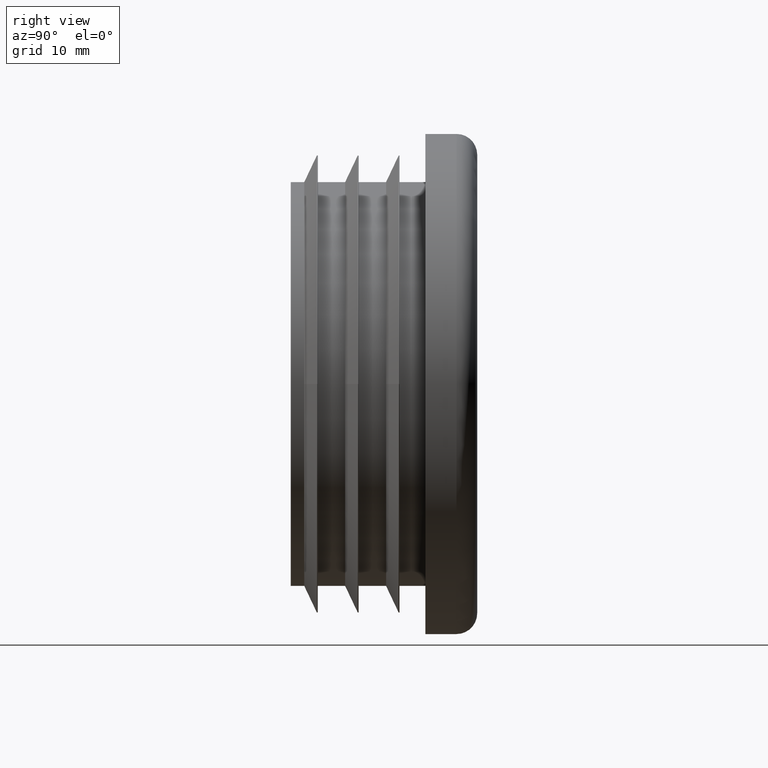
[diagram: clean part render]
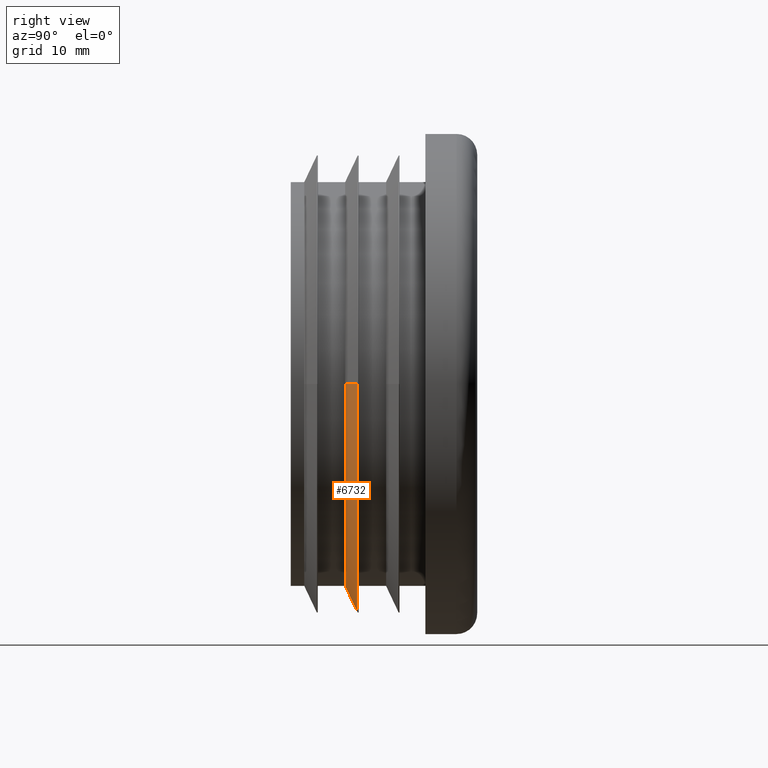
[diagram: same view with one face highlighted and labeled with its STEP entity id]
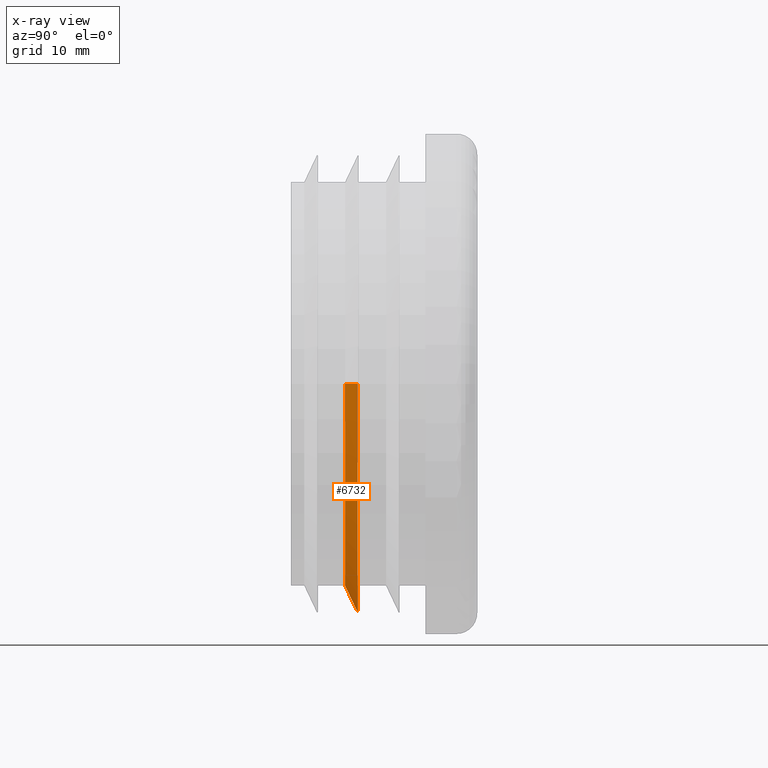
[diagram: x-ray of the same camera — body ghosted, the highlighted face saturated]
A machine part, right view. The second image highlights one B-rep face of the part: STEP entity #6732.
The next image is the same camera in x-ray: the body ghosted, the highlighted face saturated — about 0% of this face is hidden behind the body in this view.
In plain terms, the highlighted conical surface has half-angle 65.316 deg.
Its self-contained STEP definition (entity closure, byte-faithful):
#116 = VERTEX_POINT ( 'NONE', #9948 ) ;
#147 = ORIENTED_EDGE ( 'NONE', *, *, #5777, .T. ) ;
#251 = CONICAL_SURFACE ( 'NONE', #6447, 19.50000000000009592, 1.139983996948040978 ) ;
#662 = DIRECTION ( 'NONE',  ( 0.9086268132129851072, 0.4176090448139445632, 1.112746918420747453E-16 ) ) ;
#697 = VERTEX_POINT ( 'NONE', #13340 ) ;
#1451 = VECTOR ( 'NONE', #662, 1000.000000000000000 ) ;
#1466 = CIRCLE ( 'NONE', #10534, 19.50000000000000000 ) ;
#1748 = FACE_OUTER_BOUND ( 'NONE', #6247, .T. ) ;
#2157 = EDGE_CURVE ( 'NONE', #697, #10076, #1466, .T. ) ;
#2166 = DIRECTION ( 'NONE',  ( -1.047444401652940007E-14, 1.000000000000000000, 0.000000000000000000 ) ) ;
#4741 = CARTESIAN_POINT ( 'NONE',  ( 19.49999999999994316, 5.250000000000181188, 2.548543901176567384E-15 ) ) ;
#4860 = LINE ( 'NONE', #9346, #1451 ) ;
#5288 = DIRECTION ( 'NONE',  ( -1.047444401652940007E-14, 1.000000000000000000, 0.000000000000000000 ) ) ;
#5336 = LINE ( 'NONE', #12983, #6033 ) ;
#5573 = AXIS2_PLACEMENT_3D ( 'NONE', #6425, #10712, #13048 ) ;
#5675 = CARTESIAN_POINT ( 'NONE',  ( -22.12088045224086486, 6.454568659339137149, 0.000000000000000000 ) ) ;
#5777 = EDGE_CURVE ( 'NONE', #10076, #6949, #5336, .T. ) ;
#6033 = VECTOR ( 'NONE', #7577, 1000.000000000000000 ) ;
#6237 = DIRECTION ( 'NONE',  ( -1.000000000000000000, -1.045282094498840211E-14, 0.000000000000000000 ) ) ;
#6247 = EDGE_LOOP ( 'NONE', ( #10781, #6282, #12833, #147, #9007 ) ) ;
#6261 = CIRCLE ( 'NONE', #5573, 22.12088045224080091 ) ;
#6282 = ORIENTED_EDGE ( 'NONE', *, *, #10247, .T. ) ;
#6286 = CARTESIAN_POINT ( 'NONE',  ( -5.499083108677958069E-14, 5.250000000000022204, 0.000000000000000000 ) ) ;
#6425 = CARTESIAN_POINT ( 'NONE',  ( -6.760801807309544010E-14, 6.454568659339368963, 0.000000000000000000 ) ) ;
#6447 = AXIS2_PLACEMENT_3D ( 'NONE', #6286, #5288, #6237 ) ;
#6732 = ADVANCED_FACE ( 'NONE', ( #1748 ), #251, .T. ) ;
#6949 = VERTEX_POINT ( 'NONE', #5675 ) ;
#7247 = CIRCLE ( 'NONE', #10317, 19.50000000000000000 ) ;
#7577 = DIRECTION ( 'NONE',  ( -0.9086268132129937669, 0.4176090448139255229, 0.000000000000000000 ) ) ;
#7585 = DIRECTION ( 'NONE',  ( -1.000000000000000000, -1.045282094498845260E-14, 0.000000000000000000 ) ) ;
#7587 = VERTEX_POINT ( 'NONE', #4741 ) ;
#7918 = DIRECTION ( 'NONE',  ( -1.047444401652940007E-14, 1.000000000000000000, 0.000000000000000000 ) ) ;
#8354 = EDGE_CURVE ( 'NONE', #6949, #116, #6261, .T. ) ;
#9007 = ORIENTED_EDGE ( 'NONE', *, *, #8354, .T. ) ;
#9346 = CARTESIAN_POINT ( 'NONE',  ( 19.50000000000004263, 5.250000000000225597, 2.388061258337350772E-15 ) ) ;
#9948 = CARTESIAN_POINT ( 'NONE',  ( 22.12088045224072985, 6.454568659339599890, 2.709026544015795041E-15 ) ) ;
#10025 = DIRECTION ( 'NONE',  ( -1.000000000000000000, -1.045282094498845260E-14, 0.000000000000000000 ) ) ;
#10076 = VERTEX_POINT ( 'NONE', #10261 ) ;
#10247 = EDGE_CURVE ( 'NONE', #7587, #697, #7247, .T. ) ;
#10261 = CARTESIAN_POINT ( 'NONE',  ( -19.50000000000005684, 5.249999999999773515, 0.000000000000000000 ) ) ;
#10317 = AXIS2_PLACEMENT_3D ( 'NONE', #12993, #2166, #7585 ) ;
#10534 = AXIS2_PLACEMENT_3D ( 'NONE', #13155, #7918, #10025 ) ;
#10712 = DIRECTION ( 'NONE',  ( 1.047444401652940007E-14, -1.000000000000000000, -0.000000000000000000 ) ) ;
#10781 = ORIENTED_EDGE ( 'NONE', *, *, #11615, .F. ) ;
#11615 = EDGE_CURVE ( 'NONE', #7587, #116, #4860, .T. ) ;
#12833 = ORIENTED_EDGE ( 'NONE', *, *, #2157, .T. ) ;
#12983 = CARTESIAN_POINT ( 'NONE',  ( -19.50000000000015277, 5.249999999999817923, 0.000000000000000000 ) ) ;
#12993 = CARTESIAN_POINT ( 'NONE',  ( -5.499083108677911369E-14, 5.249999999999977796, 0.000000000000000000 ) ) ;
#13048 = DIRECTION ( 'NONE',  ( 1.000000000000000000, 1.046909432664306937E-14, 0.000000000000000000 ) ) ;
#13155 = CARTESIAN_POINT ( 'NONE',  ( -5.499083108677911369E-14, 5.249999999999977796, 0.000000000000000000 ) ) ;
#13340 = CARTESIAN_POINT ( 'NONE',  ( -2.132389634425547537E-27, 5.249999999999977796, -19.50000000000000000 ) ) ;